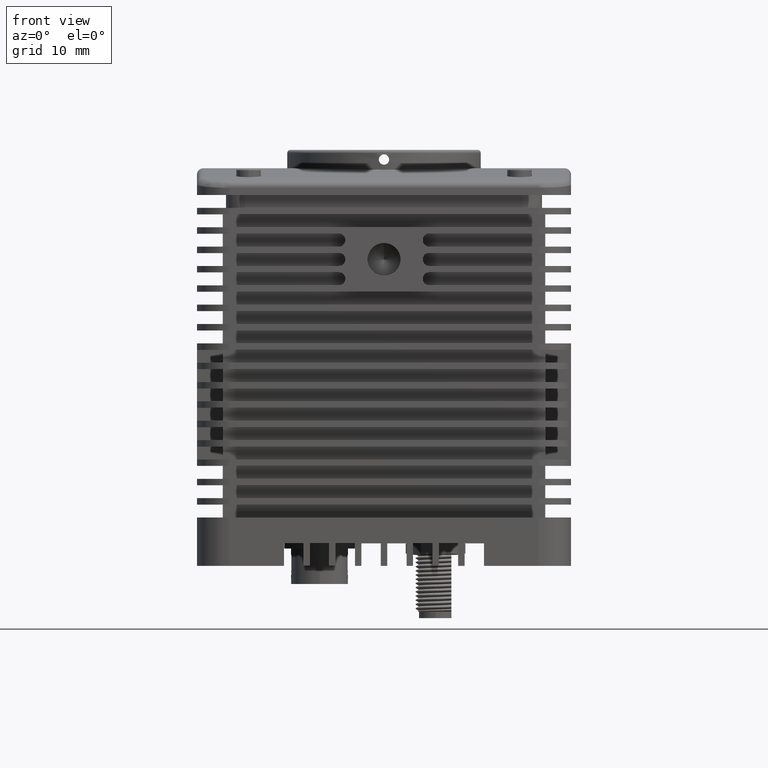
[diagram: clean part render]
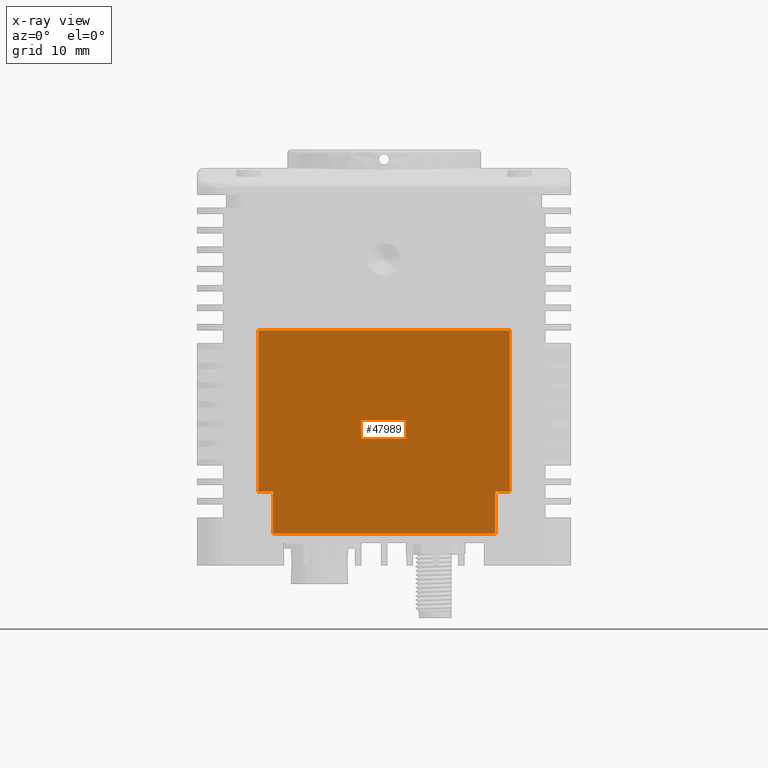
[diagram: x-ray — body ghosted, one internal face saturated and labeled with its STEP entity id]
A machine part, front view, then the same camera in x-ray: the body is ghosted and one INTERNAL B-rep face — a face not visible from any outside direction — is saturated and labeled: STEP entity #47989.
In plain terms, the highlighted planar face has unit normal (0, 1, 0).
Its self-contained STEP definition (entity closure, byte-faithful):
#1731 = DIRECTION ( 'NONE',  ( 0.0000000000000000000, 0.0000000000000000000, 1.000000000000000000 ) ) ;
#3724 = ORIENTED_EDGE ( 'NONE', *, *, #67251, .F. ) ;
#7975 = EDGE_LOOP ( 'NONE', ( #52611, #18132, #64464, #3724, #17940, #23823, #42737, #33653 ) ) ;
#8716 = VECTOR ( 'NONE', #67719, 1000.000000000000000 ) ;
#9192 = VECTOR ( 'NONE', #23608, 1000.000000000000000 ) ;
#9324 = AXIS2_PLACEMENT_3D ( 'NONE', #12295, #33850, #1731 ) ;
#12247 = VERTEX_POINT ( 'NONE', #29547 ) ;
#12295 = CARTESIAN_POINT ( 'NONE',  ( 19.50000000000002100, 25.80000000000000100, 47.50000000000000000 ) ) ;
#13736 = DIRECTION ( 'NONE',  ( -0.0000000000000000000, -0.0000000000000000000, -1.000000000000000000 ) ) ;
#13813 = EDGE_CURVE ( 'NONE', #45407, #40177, #32977, .T. ) ;
#14450 = VECTOR ( 'NONE', #13736, 1000.000000000000000 ) ;
#17940 = ORIENTED_EDGE ( 'NONE', *, *, #63078, .T. ) ;
#18132 = ORIENTED_EDGE ( 'NONE', *, *, #20357, .T. ) ;
#18617 = CARTESIAN_POINT ( 'NONE',  ( -17.25735931288073000, 25.80000000000000100, 46.50000000000000700 ) ) ;
#20224 = CARTESIAN_POINT ( 'NONE',  ( -19.50000000000000000, 25.80000000000000100, 40.00000000000000000 ) ) ;
#20357 = EDGE_CURVE ( 'NONE', #51993, #53531, #45521, .T. ) ;
#21070 = VECTOR ( 'NONE', #39211, 1000.000000000000000 ) ;
#22743 = LINE ( 'NONE', #33840, #21070 ) ;
#23608 = DIRECTION ( 'NONE',  ( -0.0000000000000000000, -0.0000000000000000000, -1.000000000000000000 ) ) ;
#23765 = DIRECTION ( 'NONE',  ( 1.000000000000000000, -3.469446951953611000E-015, 0.0000000000000000000 ) ) ;
#23823 = ORIENTED_EDGE ( 'NONE', *, *, #25644, .F. ) ;
#24541 = CARTESIAN_POINT ( 'NONE',  ( -19.50000000000000000, 25.80000000000000100, 47.50000000000000000 ) ) ;
#25644 = EDGE_CURVE ( 'NONE', #56423, #40328, #22743, .T. ) ;
#29547 = CARTESIAN_POINT ( 'NONE',  ( 19.50000000000002100, 25.80000000000000100, 40.00000000000000000 ) ) ;
#30764 = DIRECTION ( 'NONE',  ( 1.000000000000000000, 0.0000000000000000000, 0.0000000000000000000 ) ) ;
#30973 = VERTEX_POINT ( 'NONE', #69126 ) ;
#32977 = LINE ( 'NONE', #55735, #61384 ) ;
#33653 = ORIENTED_EDGE ( 'NONE', *, *, #13813, .F. ) ;
#33840 = CARTESIAN_POINT ( 'NONE',  ( 19.50000000000002100, 25.80000000000000100, 46.50000000000000700 ) ) ;
#33850 = DIRECTION ( 'NONE',  ( 0.0000000000000000000, 1.000000000000000000, -0.0000000000000000000 ) ) ;
#38743 = PLANE ( 'NONE',  #9324 ) ;
#39211 = DIRECTION ( 'NONE',  ( 1.000000000000000000, -0.0000000000000000000, 0.0000000000000000000 ) ) ;
#39915 = VECTOR ( 'NONE', #41247, 1000.000000000000000 ) ;
#40177 = VERTEX_POINT ( 'NONE', #42127 ) ;
#40328 = VERTEX_POINT ( 'NONE', #42591 ) ;
#40755 = CARTESIAN_POINT ( 'NONE',  ( 19.50000000000002100, 25.80000000000000100, 40.00000000000000000 ) ) ;
#41247 = DIRECTION ( 'NONE',  ( -0.0000000000000000000, 0.0000000000000000000, 1.000000000000000000 ) ) ;
#41262 = CARTESIAN_POINT ( 'NONE',  ( 19.50000000000002100, 25.80000000000000100, 15.00000000000000000 ) ) ;
#41559 = EDGE_CURVE ( 'NONE', #12247, #53531, #50237, .T. ) ;
#42127 = CARTESIAN_POINT ( 'NONE',  ( -17.25735931288072700, 25.80000000000001100, 40.00000000000000000 ) ) ;
#42273 = LINE ( 'NONE', #40755, #68978 ) ;
#42591 = CARTESIAN_POINT ( 'NONE',  ( 17.25735931288073400, 25.80000000000000100, 46.50000000000000700 ) ) ;
#42737 = ORIENTED_EDGE ( 'NONE', *, *, #57504, .T. ) ;
#45407 = VERTEX_POINT ( 'NONE', #20224 ) ;
#45521 = LINE ( 'NONE', #41262, #57958 ) ;
#46167 = DIRECTION ( 'NONE',  ( 1.000000000000000000, -0.0000000000000000000, -0.0000000000000000000 ) ) ;
#47989 = ADVANCED_FACE ( 'NONE', ( #62503 ), #38743, .F. ) ;
#50237 = LINE ( 'NONE', #55578, #9192 ) ;
#51398 = LINE ( 'NONE', #62336, #8716 ) ;
#51993 = VERTEX_POINT ( 'NONE', #54242 ) ;
#52611 = ORIENTED_EDGE ( 'NONE', *, *, #68583, .T. ) ;
#53531 = VERTEX_POINT ( 'NONE', #67716 ) ;
#54070 = LINE ( 'NONE', #57099, #39915 ) ;
#54242 = CARTESIAN_POINT ( 'NONE',  ( -19.50000000000000000, 25.80000000000000100, 15.00000000000000000 ) ) ;
#55578 = CARTESIAN_POINT ( 'NONE',  ( 19.50000000000002100, 25.80000000000000100, 47.50000000000000000 ) ) ;
#55735 = CARTESIAN_POINT ( 'NONE',  ( -19.50000000000000000, 25.80000000000001800, 40.00000000000000000 ) ) ;
#56423 = VERTEX_POINT ( 'NONE', #18617 ) ;
#57099 = CARTESIAN_POINT ( 'NONE',  ( 17.25735931288073400, 25.80000000000000100, 47.50000000000000000 ) ) ;
#57106 = LINE ( 'NONE', #24541, #14450 ) ;
#57504 = EDGE_CURVE ( 'NONE', #56423, #40177, #51398, .T. ) ;
#57958 = VECTOR ( 'NONE', #30764, 1000.000000000000000 ) ;
#61384 = VECTOR ( 'NONE', #23765, 1000.000000000000000 ) ;
#62336 = CARTESIAN_POINT ( 'NONE',  ( -17.25735931288072700, 25.80000000000000100, 40.00000000000000000 ) ) ;
#62503 = FACE_OUTER_BOUND ( 'NONE', #7975, .T. ) ;
#63078 = EDGE_CURVE ( 'NONE', #30973, #40328, #54070, .T. ) ;
#64464 = ORIENTED_EDGE ( 'NONE', *, *, #41559, .F. ) ;
#67251 = EDGE_CURVE ( 'NONE', #30973, #12247, #42273, .T. ) ;
#67716 = CARTESIAN_POINT ( 'NONE',  ( 19.50000000000002100, 25.80000000000000100, 15.00000000000000000 ) ) ;
#67719 = DIRECTION ( 'NONE',  ( 0.0000000000000000000, -0.0000000000000000000, -1.000000000000000000 ) ) ;
#68583 = EDGE_CURVE ( 'NONE', #45407, #51993, #57106, .T. ) ;
#68978 = VECTOR ( 'NONE', #46167, 1000.000000000000000 ) ;
#69126 = CARTESIAN_POINT ( 'NONE',  ( 17.25735931288073400, 25.80000000000000100, 40.00000000000000000 ) ) ;